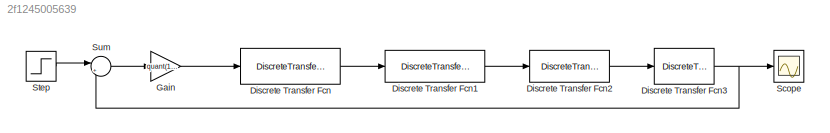
MODEL slx_2f1245005639
KIND model
CONFIG AbsTol = auto
CONFIG EnableMultiTasking = off
CONFIG FixedStep = auto
CONFIG MaxStep = auto
CONFIG MinStep = auto
CONFIG RelTol = 1e-3
CONFIG SampleTimeConstraint = Unconstrained
CONFIG SolverName = VariableStepAuto
CONFIG StartTime = 0.0
CONFIG StopTime = 2000
BLOCK [DiscreteTransferFcn] Discrete Transfer Fcn
  Denominator = quant([1 -0.96], 2^(-16))
  InputPortMap = u0
  Numerator = quant([0 1], 2^(-16))
  Ports = [1, 1]
BLOCK [DiscreteTransferFcn] Discrete Transfer Fcn1
  Denominator = quant([1 -0.94], 2^(-16))
  InputPortMap = u0
  Numerator = quant([1 -0.522], 2^(-16))
  Ports = [1, 1]
BLOCK [DiscreteTransferFcn] Discrete Transfer Fcn2
  Denominator = quant([1 -0.92], 2^-16)
  InputPortMap = u0
  Numerator = quant([1 0.45], 2^(-16))
  Ports = [1, 1]
BLOCK [DiscreteTransferFcn] Discrete Transfer Fcn3
  Denominator = [1 -1]
  InputPortMap = u0
  Ports = [1, 1]
BLOCK [Gain] Gain
  Gain = quant(1e-5, 2^-16)
BLOCK [Scope] Scope
  Floating = off
  NumInputPorts = 1
  Ports = [1]
  ScopeSpecificationString = Simulink.scopes.TimeScopeBlockCfg('CurrentConfiguration', extmgr.ConfigurationSet(extmgr.Configuration('Core','General UI',true),extmgr.Configuration('Core','Source UI',true),extmgr.Configuration('Sources','WiredSimulink',true),extmgr.Configuration('Visuals','Time Domain',true,'SerializedDisplays',{struct('MinYLimReal','-0.23903','MaxYLimReal','2.15129','YLabelReal','','MinYLimMag','0.00000','MaxY...<+1342ch>
BLOCK [Step] Step
  SampleTime = 0.1
BLOCK [Sum] Sum
  Inputs = |+-
  Ports = [2, 1]
LINE Discrete Transfer Fcn1:1 -> Discrete Transfer Fcn2:1
LINE Discrete Transfer Fcn2:1 -> Discrete Transfer Fcn3:1
NET Discrete Transfer Fcn3:1 -> Scope:1, Sum:2
LINE Discrete Transfer Fcn:1 -> Discrete Transfer Fcn1:1
LINE Gain:1 -> Discrete Transfer Fcn:1
LINE Step:1 -> Sum:1
LINE Sum:1 -> Gain:1
note: NET lines group one-source signal fan-out (src -> all destinations, sorted); 1:1 wires keep LINE
